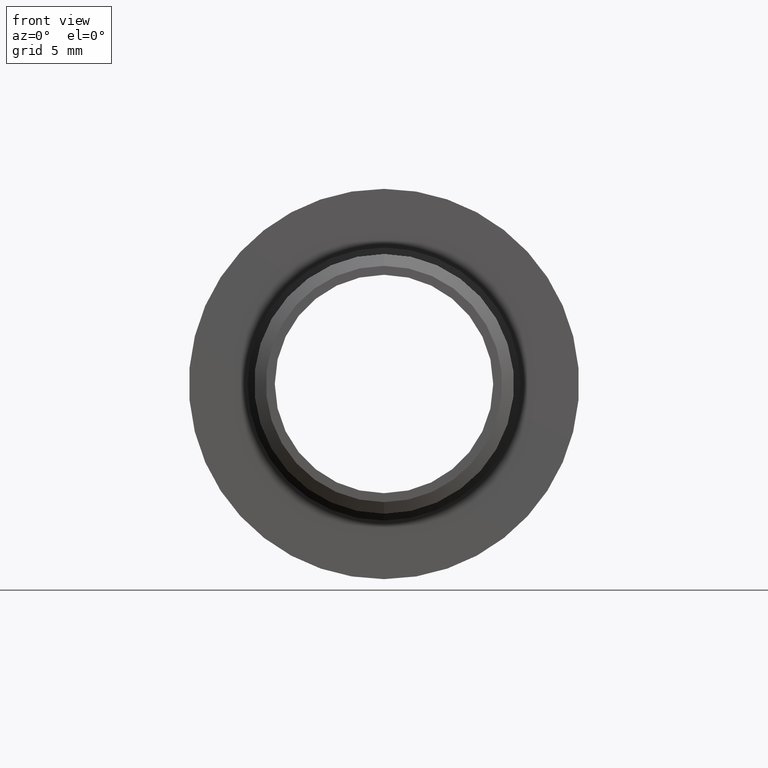
[diagram: clean part render]
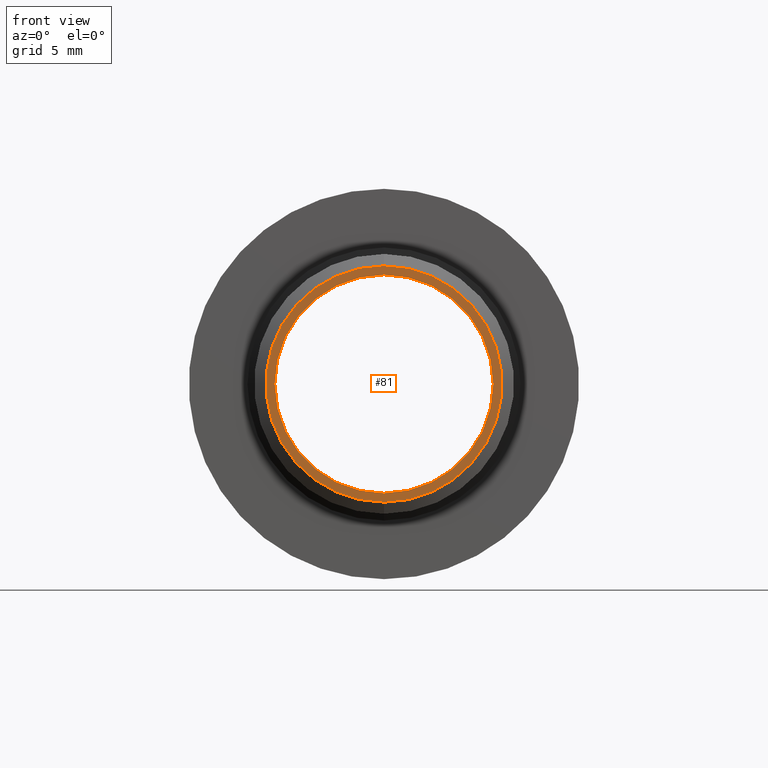
[diagram: same view with one face highlighted and labeled with its STEP entity id]
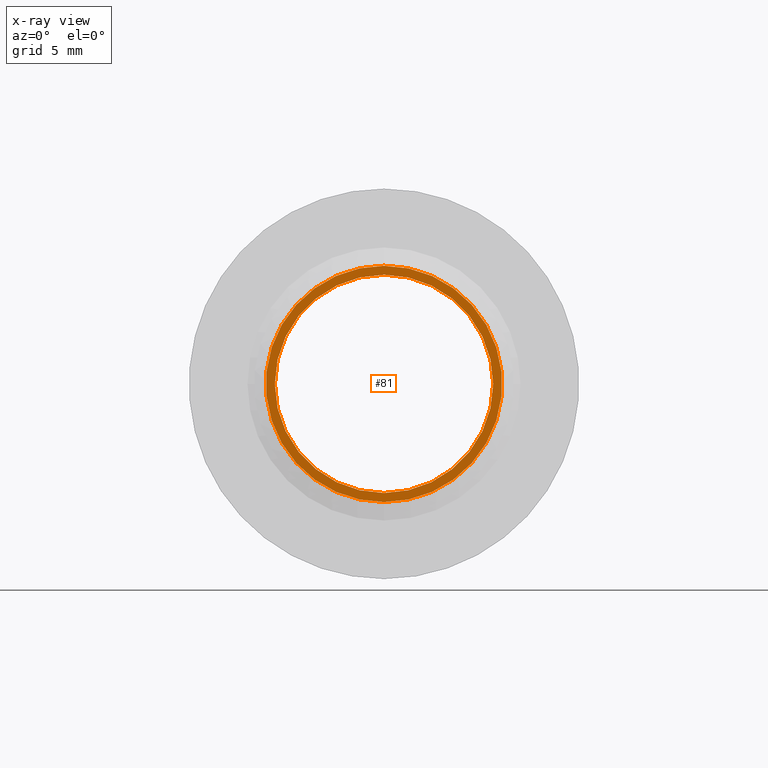
[diagram: x-ray of the same camera — body ghosted, the highlighted face saturated]
A machine part, front view. The second image highlights one B-rep face of the part: STEP entity #81.
The next image is the same camera in x-ray: the body ghosted, the highlighted face saturated — about 0% of this face is hidden behind the body in this view.
In plain terms, the highlighted planar face has unit normal (0, -1, -0).
Its self-contained STEP definition (entity closure, byte-faithful):
#65 = ORIENTED_EDGE ( 'NONE', *, *, #72, .F. ) ;
#66 = EDGE_LOOP ( 'NONE', ( #65, #75 ) ) ;
#72 = EDGE_CURVE ( 'NONE', #1263, #1265, #601, .T. ) ;
#74 = EDGE_LOOP ( 'NONE', ( #99, #98 ) ) ;
#75 = ORIENTED_EDGE ( 'NONE', *, *, #1264, .F. ) ;
#81 = ADVANCED_FACE ( 'NONE', ( #645, #644 ), #643, .T. ) ;
#97 = EDGE_CURVE ( 'NONE', #1162, #1159, #667, .T. ) ;
#98 = ORIENTED_EDGE ( 'NONE', *, *, #97, .T. ) ;
#99 = ORIENTED_EDGE ( 'NONE', *, *, #1161, .T. ) ;
#601 = CIRCLE ( 'NONE', #663, 0.2520000000000000000 ) ;
#638 = DIRECTION ( 'NONE',  ( 0.0000000000000000000, 0.0000000000000000000, -1.000000000000000000 ) ) ;
#639 = DIRECTION ( 'NONE',  ( 0.0000000000000000000, -1.000000000000000000, -0.0000000000000000000 ) ) ;
#640 = AXIS2_PLACEMENT_3D ( 'NONE', #642, #639, #638 ) ;
#642 = CARTESIAN_POINT ( 'NONE',  ( 0.2520000000000000000, 3.154806043944714400E-020, 0.0000000000000000000 ) ) ;
#643 = PLANE ( 'NONE',  #640 ) ;
#644 = FACE_OUTER_BOUND ( 'NONE', #74, .T. ) ;
#645 = FACE_BOUND ( 'NONE', #66, .T. ) ;
#660 = DIRECTION ( 'NONE',  ( 0.0000000000000000000, 0.0000000000000000000, -1.000000000000000000 ) ) ;
#661 = DIRECTION ( 'NONE',  ( -0.0000000000000000000, -1.000000000000000000, -0.0000000000000000000 ) ) ;
#662 = CARTESIAN_POINT ( 'NONE',  ( 0.0000000000000000000, 0.0000000000000000000, 0.0000000000000000000 ) ) ;
#663 = AXIS2_PLACEMENT_3D ( 'NONE', #662, #661, #660 ) ;
#665 = CARTESIAN_POINT ( 'NONE',  ( 0.0000000000000000000, 0.0000000000000000000, 0.0000000000000000000 ) ) ;
#666 = AXIS2_PLACEMENT_3D ( 'NONE', #665, #726, #725 ) ;
#667 = CIRCLE ( 'NONE', #666, 0.2726287765502966600 ) ;
#725 = DIRECTION ( 'NONE',  ( 0.0000000000000000000, 0.0000000000000000000, -1.000000000000000000 ) ) ;
#726 = DIRECTION ( 'NONE',  ( -0.0000000000000000000, -1.000000000000000000, -0.0000000000000000000 ) ) ;
#1159 = VERTEX_POINT ( 'NONE', #1737 ) ;
#1161 = EDGE_CURVE ( 'NONE', #1159, #1162, #1735, .T. ) ;
#1162 = VERTEX_POINT ( 'NONE', #1730 ) ;
#1263 = VERTEX_POINT ( 'NONE', #1951 ) ;
#1264 = EDGE_CURVE ( 'NONE', #1265, #1263, #1950, .T. ) ;
#1265 = VERTEX_POINT ( 'NONE', #1945 ) ;
#1730 = CARTESIAN_POINT ( 'NONE',  ( 3.338739585577797800E-017, 0.0000000000000000000, 0.2726287765502966600 ) ) ;
#1731 = DIRECTION ( 'NONE',  ( 0.0000000000000000000, 0.0000000000000000000, -1.000000000000000000 ) ) ;
#1732 = DIRECTION ( 'NONE',  ( -0.0000000000000000000, -1.000000000000000000, -0.0000000000000000000 ) ) ;
#1733 = CARTESIAN_POINT ( 'NONE',  ( 0.0000000000000000000, 0.0000000000000000000, 0.0000000000000000000 ) ) ;
#1734 = AXIS2_PLACEMENT_3D ( 'NONE', #1733, #1732, #1731 ) ;
#1735 = CIRCLE ( 'NONE', #1734, 0.2726287765502966600 ) ;
#1737 = CARTESIAN_POINT ( 'NONE',  ( 0.0000000000000000000, 0.0000000000000000000, -0.2726287765502966600 ) ) ;
#1945 = CARTESIAN_POINT ( 'NONE',  ( 3.086109933851330000E-017, 0.0000000000000000000, 0.2520000000000000000 ) ) ;
#1946 = DIRECTION ( 'NONE',  ( 0.0000000000000000000, 0.0000000000000000000, -1.000000000000000000 ) ) ;
#1947 = DIRECTION ( 'NONE',  ( -0.0000000000000000000, -1.000000000000000000, -0.0000000000000000000 ) ) ;
#1948 = CARTESIAN_POINT ( 'NONE',  ( 0.0000000000000000000, 0.0000000000000000000, 0.0000000000000000000 ) ) ;
#1949 = AXIS2_PLACEMENT_3D ( 'NONE', #1948, #1947, #1946 ) ;
#1950 = CIRCLE ( 'NONE', #1949, 0.2520000000000000000 ) ;
#1951 = CARTESIAN_POINT ( 'NONE',  ( 0.0000000000000000000, 0.0000000000000000000, -0.2520000000000000000 ) ) ;